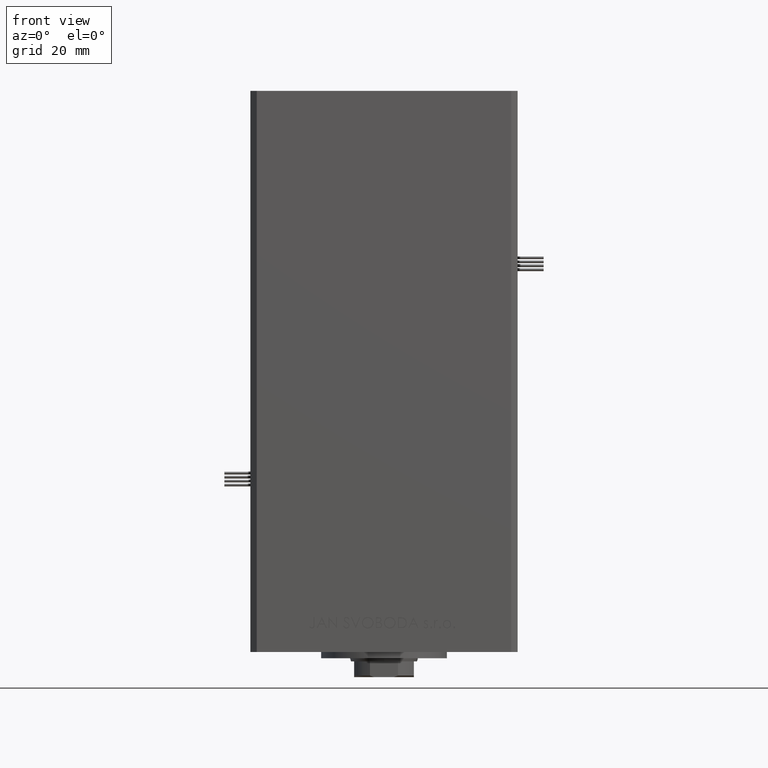
[diagram: clean part render]
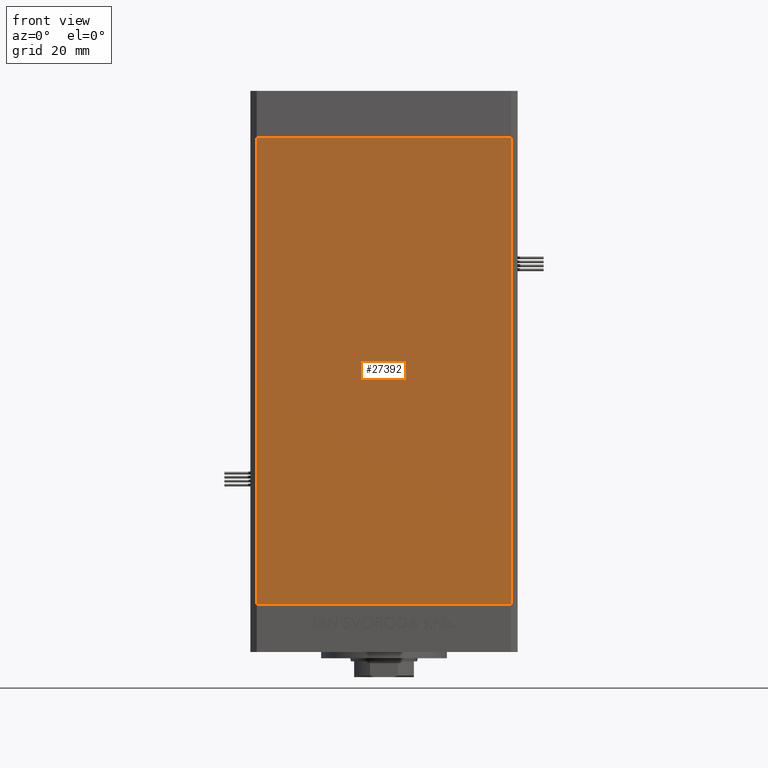
[diagram: same view with one face highlighted and labeled with its STEP entity id]
A machine part, front view. The second image highlights one B-rep face of the part: STEP entity #27392.
In plain terms, the highlighted planar face has unit normal (0, 1, 0).
Its self-contained STEP definition (entity closure, byte-faithful):
#1555 = CARTESIAN_POINT ( 'NONE',  ( -40.49999999999998579, -37.50000000000000711, 148.5000000000000000 ) ) ;
#2481 = VECTOR ( 'NONE', #51316, 1000.000000000000000 ) ;
#3831 = LINE ( 'NONE', #40982, #18899 ) ;
#4405 = EDGE_CURVE ( 'NONE', #17412, #43224, #34726, .T. ) ;
#5908 = EDGE_CURVE ( 'NONE', #43224, #13585, #36336, .T. ) ;
#8570 = DIRECTION ( 'NONE',  ( 0.000000000000000000, 1.000000000000000000, 0.000000000000000000 ) ) ;
#9079 = ORIENTED_EDGE ( 'NONE', *, *, #5908, .F. ) ;
#9094 = DIRECTION ( 'NONE',  ( 0.000000000000000000, -0.000000000000000000, 1.000000000000000000 ) ) ;
#10584 = CARTESIAN_POINT ( 'NONE',  ( 40.49999999999998579, -37.50000000000000711, 0.000000000000000000 ) ) ;
#12686 = EDGE_CURVE ( 'NONE', #17412, #40973, #43726, .T. ) ;
#13009 = CARTESIAN_POINT ( 'NONE',  ( -40.49999999999998579, -37.50000000000000711, 148.5000000000000000 ) ) ;
#13585 = VERTEX_POINT ( 'NONE', #10584 ) ;
#13699 = CARTESIAN_POINT ( 'NONE',  ( -40.49999999999998579, -37.50000000000000711, 0.000000000000000000 ) ) ;
#14833 = CARTESIAN_POINT ( 'NONE',  ( -40.49999999999998579, -37.50000000000000711, 148.5000000000000000 ) ) ;
#17195 = FACE_OUTER_BOUND ( 'NONE', #38185, .T. ) ;
#17412 = VERTEX_POINT ( 'NONE', #1555 ) ;
#17704 = ORIENTED_EDGE ( 'NONE', *, *, #4405, .F. ) ;
#18899 = VECTOR ( 'NONE', #28439, 1000.000000000000000 ) ;
#19029 = VECTOR ( 'NONE', #34988, 1000.000000000000000 ) ;
#23390 = ORIENTED_EDGE ( 'NONE', *, *, #12686, .T. ) ;
#24037 = DIRECTION ( 'NONE',  ( -0.000000000000000000, -0.000000000000000000, -1.000000000000000000 ) ) ;
#26027 = CARTESIAN_POINT ( 'NONE',  ( 40.49999999999998579, -37.50000000000000711, 148.5000000000000000 ) ) ;
#27392 = ADVANCED_FACE ( 'NONE', ( #17195 ), #44384, .F. ) ;
#28439 = DIRECTION ( 'NONE',  ( 1.000000000000000000, 0.000000000000000000, 0.000000000000000000 ) ) ;
#31740 = EDGE_CURVE ( 'NONE', #40973, #13585, #3831, .T. ) ;
#32234 = CARTESIAN_POINT ( 'NONE',  ( -40.49999999999998579, -37.50000000000000711, 148.5000000000000000 ) ) ;
#34726 = LINE ( 'NONE', #14833, #19029 ) ;
#34988 = DIRECTION ( 'NONE',  ( 1.000000000000000000, 0.000000000000000000, 0.000000000000000000 ) ) ;
#36336 = LINE ( 'NONE', #40786, #51632 ) ;
#38185 = EDGE_LOOP ( 'NONE', ( #39229, #9079, #17704, #23390 ) ) ;
#39229 = ORIENTED_EDGE ( 'NONE', *, *, #31740, .T. ) ;
#40786 = CARTESIAN_POINT ( 'NONE',  ( 40.49999999999998579, -37.50000000000000711, 148.5000000000000000 ) ) ;
#40973 = VERTEX_POINT ( 'NONE', #13699 ) ;
#40982 = CARTESIAN_POINT ( 'NONE',  ( -40.49999999999998579, -37.50000000000000711, 0.000000000000000000 ) ) ;
#43050 = AXIS2_PLACEMENT_3D ( 'NONE', #13009, #8570, #9094 ) ;
#43224 = VERTEX_POINT ( 'NONE', #26027 ) ;
#43726 = LINE ( 'NONE', #32234, #2481 ) ;
#44384 = PLANE ( 'NONE',  #43050 ) ;
#51316 = DIRECTION ( 'NONE',  ( -0.000000000000000000, -0.000000000000000000, -1.000000000000000000 ) ) ;
#51632 = VECTOR ( 'NONE', #24037, 1000.000000000000000 ) ;